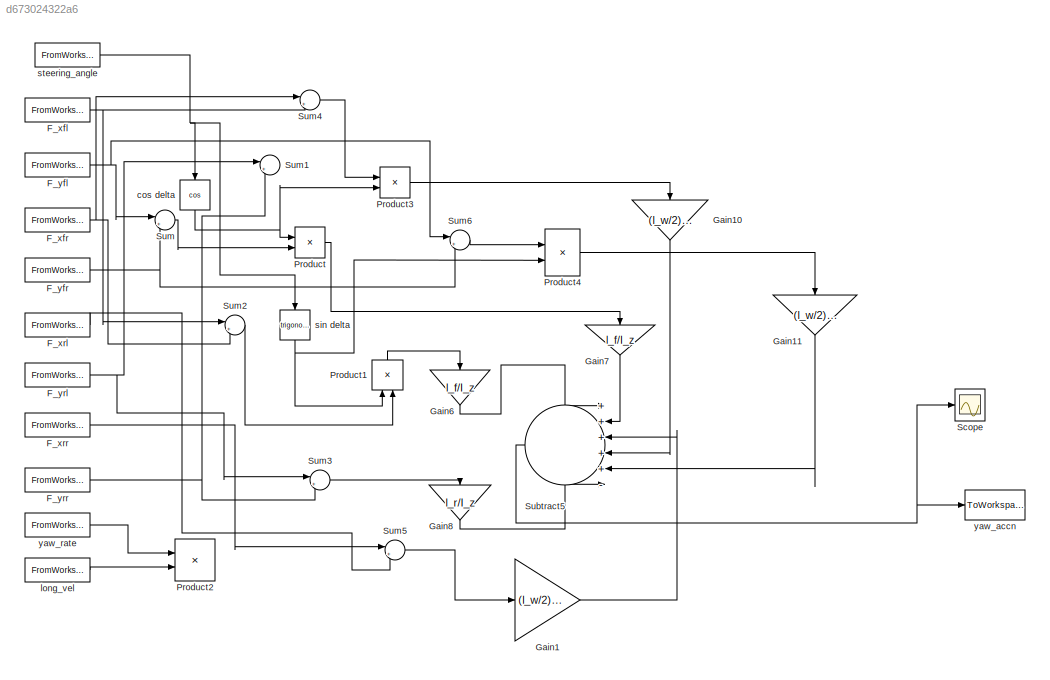
MODEL slx_d673024322a6
KIND model
CONFIG AbsTol = auto
CONFIG FixedStep = auto
CONFIG MaxStep = auto
CONFIG MinStep = auto
CONFIG RelTol = 1e-3
CONFIG SampleTimeConstraint = Unconstrained
CONFIG Solver = ode45
CONFIG SolverMode = Auto
CONFIG SolverName = ode45
CONFIG StartTime = 0.0
CONFIG StopTime = 10.0
BLOCK [FromWorkspace] F_xfl
  SampleTime = 0
  VariableName = F_xfl
  ZeroCross = on
BLOCK [FromWorkspace] F_xfr
  SampleTime = 0
  VariableName = F_xfr
  ZeroCross = on
BLOCK [FromWorkspace] F_xrl
  SampleTime = 0
  VariableName = F_xrl
  ZeroCross = on
BLOCK [FromWorkspace] F_xrr
  SampleTime = 0
  VariableName = F_xrr
  ZeroCross = on
BLOCK [FromWorkspace] F_yfl
  SampleTime = 0
  VariableName = F_yfl
  ZeroCross = on
BLOCK [FromWorkspace] F_yfr
  SampleTime = 0
  VariableName = F_yfr
  ZeroCross = on
BLOCK [FromWorkspace] F_yrl
  SampleTime = 0
  VariableName = F_yrl
  ZeroCross = on
BLOCK [FromWorkspace] F_yrr
  SampleTime = 0
  VariableName = F_yrr
  ZeroCross = on
BLOCK [Gain] Gain1
  Gain = (l_w/2)/I_z
  OutDataTypeStr = Inherit: Inherit via internal rule
  ParamDataTypeStr = Inherit: Inherit via internal rule
  SaturateOnIntegerOverflow = off
BLOCK [Gain] Gain10
  Gain = (l_w/2)/I_z
  OutDataTypeStr = Inherit: Inherit via internal rule
  ParamDataTypeStr = Inherit: Inherit via internal rule
  SaturateOnIntegerOverflow = off
BLOCK [Gain] Gain11
  Gain = (l_w/2)/I_z
  OutDataTypeStr = Inherit: Inherit via internal rule
  ParamDataTypeStr = Inherit: Inherit via internal rule
  SaturateOnIntegerOverflow = off
BLOCK [Gain] Gain6
  Gain = l_f/I_z
  OutDataTypeStr = Inherit: Inherit via internal rule
  ParamDataTypeStr = Inherit: Inherit via internal rule
  SaturateOnIntegerOverflow = off
BLOCK [Gain] Gain7
  Gain = l_f/I_z
  OutDataTypeStr = Inherit: Inherit via internal rule
  ParamDataTypeStr = Inherit: Inherit via internal rule
  SaturateOnIntegerOverflow = off
BLOCK [Gain] Gain8
  Gain = l_r/I_z
  OutDataTypeStr = Inherit: Inherit via internal rule
  ParamDataTypeStr = Inherit: Inherit via internal rule
  SaturateOnIntegerOverflow = off
BLOCK [Product] Product
  InputSameDT = off
  OutDataTypeStr = Inherit: Inherit via internal rule
  Ports = [2, 1]
  RndMeth = Floor
  SaturateOnIntegerOverflow = off
BLOCK [Product] Product1
  InputSameDT = off
  OutDataTypeStr = Inherit: Inherit via internal rule
  Ports = [2, 1]
  RndMeth = Floor
  SaturateOnIntegerOverflow = off
BLOCK [Product] Product2
  InputSameDT = off
  OutDataTypeStr = Inherit: Inherit via internal rule
  Ports = [2, 1]
  RndMeth = Floor
  SaturateOnIntegerOverflow = off
BLOCK [Product] Product3
  InputSameDT = off
  OutDataTypeStr = Inherit: Inherit via internal rule
  Ports = [2, 1]
  RndMeth = Floor
  SaturateOnIntegerOverflow = off
BLOCK [Product] Product4
  InputSameDT = off
  OutDataTypeStr = Inherit: Inherit via internal rule
  Ports = [2, 1]
  RndMeth = Floor
  SaturateOnIntegerOverflow = off
BLOCK [Scope] Scope
  Floating = off
  NumInputPorts = 1
  Ports = [1]
BLOCK [Sum] Subtract5
  IconShape = round
  InputSameDT = off
  Inputs = +++++-
  OutDataTypeStr = Inherit: Inherit via internal rule
  Ports = [6, 1]
  SaturateOnIntegerOverflow = off
BLOCK [Sum] Sum
  IconShape = round
  InputSameDT = off
  Inputs = |++
  OutDataTypeStr = Inherit: Inherit via internal rule
  Ports = [2, 1]
  SaturateOnIntegerOverflow = off
BLOCK [Sum] Sum1
  IconShape = round
  InputSameDT = off
  Inputs = |++
  OutDataTypeStr = Inherit: Inherit via internal rule
  Ports = [2, 1]
  SaturateOnIntegerOverflow = off
BLOCK [Sum] Sum2
  IconShape = round
  InputSameDT = off
  Inputs = |++
  OutDataTypeStr = Inherit: Inherit via internal rule
  Ports = [2, 1]
  SaturateOnIntegerOverflow = off
BLOCK [Sum] Sum3
  IconShape = round
  InputSameDT = off
  Inputs = |++
  OutDataTypeStr = Inherit: Inherit via internal rule
  Ports = [2, 1]
  SaturateOnIntegerOverflow = off
BLOCK [Sum] Sum4
  IconShape = round
  InputSameDT = off
  Inputs = |+-
  OutDataTypeStr = Inherit: Inherit via internal rule
  Ports = [2, 1]
  SaturateOnIntegerOverflow = off
BLOCK [Sum] Sum5
  IconShape = round
  InputSameDT = off
  Inputs = |+-
  OutDataTypeStr = Inherit: Inherit via internal rule
  Ports = [2, 1]
  SaturateOnIntegerOverflow = off
BLOCK [Sum] Sum6
  IconShape = round
  InputSameDT = off
  Inputs = |+-
  OutDataTypeStr = Inherit: Inherit via internal rule
  Ports = [2, 1]
  SaturateOnIntegerOverflow = off
BLOCK [Trigonometry] cos delta
  Operator = cos
  Ports = [1, 1]
BLOCK [FromWorkspace] long_vel
  SampleTime = 0
  VariableName = x'
  ZeroCross = on
BLOCK [Trigonometry] sin delta 
  Ports = [1, 1]
BLOCK [FromWorkspace] steering_angle
  SampleTime = 0
  VariableName = delta
  ZeroCross = on
BLOCK [ToWorkspace] yaw_accn
  FixptAsFi = on
  MaxDataPoints = inf
  Ports = [1]
  SampleTime = -1
  Save2DSignal = 3-D array (concatenate along third dimension)
  SaveFormat = Timeseries
  VariableName = yaw_accn
BLOCK [FromWorkspace] yaw_rate
  SampleTime = 0
  VariableName = yaw_rate
  ZeroCross = on
NET F_xfl:1 -> Sum2:1, Sum4:2
NET F_xfr:1 -> Sum2:2, Sum4:1
LINE F_xrl:1 -> Sum5:2
LINE F_xrr:1 -> Sum5:1
NET F_yfl:1 -> Sum6:1, Sum:1
NET F_yfr:1 -> Sum6:2, Sum:2
NET F_yrl:1 -> Sum1:1, Sum3:1
NET F_yrr:1 -> Sum1:2, Sum3:2
LINE Gain10:1 -> Subtract5:4
LINE Gain11:1 -> Subtract5:5
LINE Gain1:1 -> Subtract5:3
LINE Gain6:1 -> Subtract5:1
LINE Gain7:1 -> Subtract5:2
LINE Gain8:1 -> Subtract5:6
LINE Product1:1 -> Gain6:1
LINE Product3:1 -> Gain10:1
LINE Product4:1 -> Gain11:1
LINE Product:1 -> Gain7:1
NET Subtract5:1 -> Scope:1, yaw_accn:1
LINE Sum2:1 -> Product1:2
LINE Sum3:1 -> Gain8:1
LINE Sum4:1 -> Product3:1
LINE Sum5:1 -> Gain1:1
LINE Sum6:1 -> Product4:1
LINE Sum:1 -> Product:2
NET cos delta:1 -> Product3:2, Product:1
LINE long_vel:1 -> Product2:2
NET sin delta :1 -> Product1:1, Product4:2
NET steering_angle:1 -> cos delta:1, sin delta :1
LINE yaw_rate:1 -> Product2:1
note: NET lines group one-source signal fan-out (src -> all destinations, sorted); 1:1 wires keep LINE
